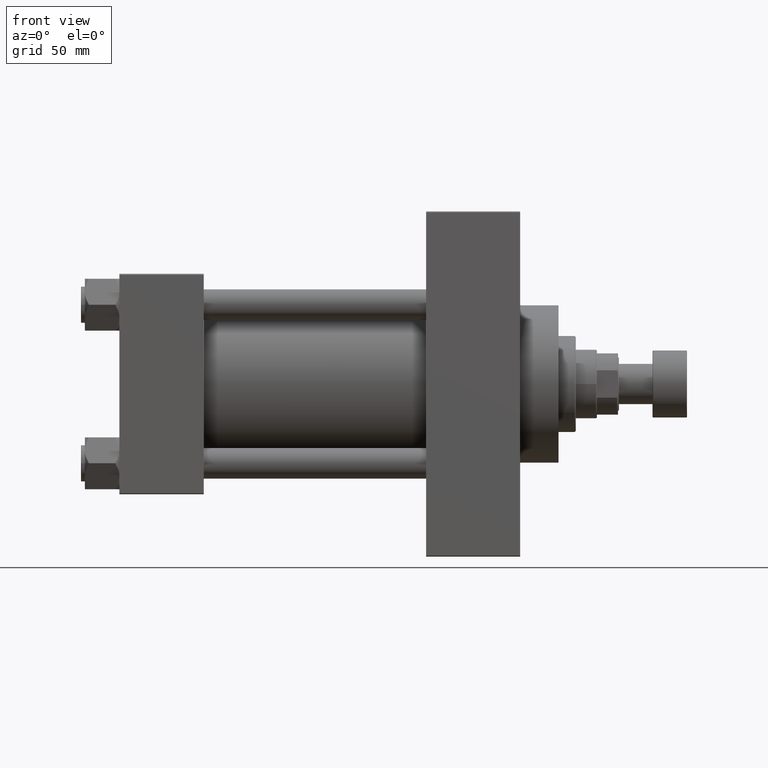
[diagram: clean part render]
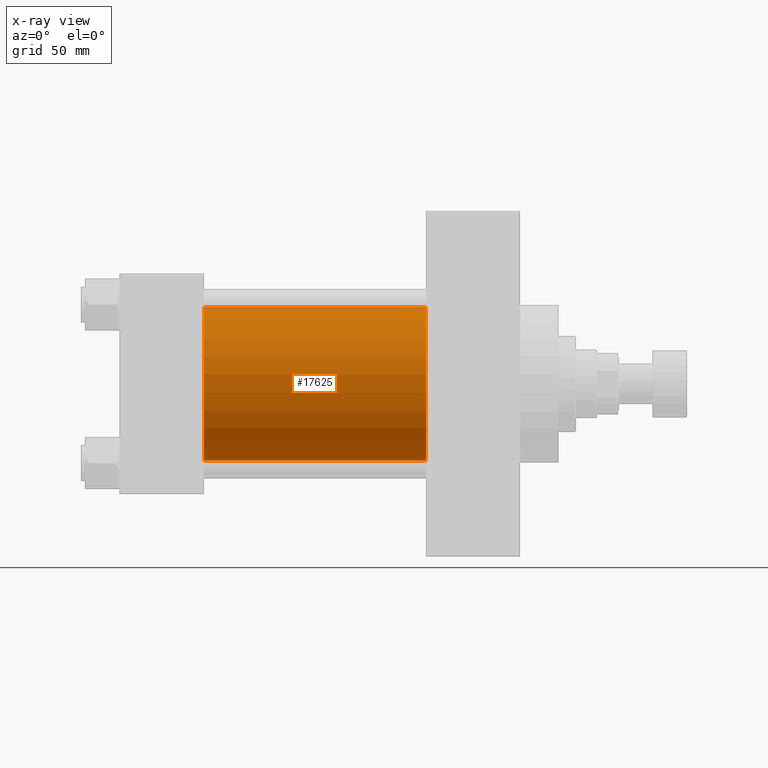
[diagram: x-ray — body ghosted, one internal face saturated and labeled with its STEP entity id]
A machine part, front view, then the same camera in x-ray: the body is ghosted and one INTERNAL B-rep face — a face not visible from any outside direction — is saturated and labeled: STEP entity #17625.
In plain terms, the highlighted cylindrical surface (partial cylindrical patch) has radius 40 mm, axis along (-1, -0, -0).
Its self-contained STEP definition (entity closure, byte-faithful):
#896 = DIRECTION ( 'NONE',  ( -1.000000000000000000, -0.000000000000000000, -0.000000000000000000 ) ) ;
#1021 = DIRECTION ( 'NONE',  ( 1.000000000000000000, 0.000000000000000000, 0.000000000000000000 ) ) ;
#2540 = LINE ( 'NONE', #43432, #21427 ) ;
#2633 = CIRCLE ( 'NONE', #29851, 40.00000000000000000 ) ;
#3594 = DIRECTION ( 'NONE',  ( -1.000000000000000000, -0.000000000000000000, -0.000000000000000000 ) ) ;
#3828 = CYLINDRICAL_SURFACE ( 'NONE', #14956, 40.00000000000000000 ) ;
#7682 = DIRECTION ( 'NONE',  ( 1.000000000000000000, 0.000000000000000000, 0.000000000000000000 ) ) ;
#7767 = AXIS2_PLACEMENT_3D ( 'NONE', #12229, #1021, #27050 ) ;
#10905 = FACE_OUTER_BOUND ( 'NONE', #37741, .T. ) ;
#11866 = VERTEX_POINT ( 'NONE', #40279 ) ;
#12229 = CARTESIAN_POINT ( 'NONE',  ( 44.00000000000000000, -2.602085213965210642E-15, 0.000000000000000000 ) ) ;
#14956 = AXIS2_PLACEMENT_3D ( 'NONE', #26204, #896, #30107 ) ;
#16758 = CARTESIAN_POINT ( 'NONE',  ( 160.0000000000000000, -2.602085213965210642E-15, 40.00000000000000000 ) ) ;
#17622 = EDGE_CURVE ( 'NONE', #21413, #26893, #25971, .T. ) ;
#17625 = ADVANCED_FACE ( 'NONE', ( #10905 ), #3828, .F. ) ;
#20975 = CIRCLE ( 'NONE', #7767, 40.00000000000000000 ) ;
#21413 = VERTEX_POINT ( 'NONE', #32935 ) ;
#21427 = VECTOR ( 'NONE', #24927, 1000.000000000000000 ) ;
#24927 = DIRECTION ( 'NONE',  ( -1.000000000000000000, -0.000000000000000000, -0.000000000000000000 ) ) ;
#25365 = EDGE_CURVE ( 'NONE', #36735, #21413, #2633, .T. ) ;
#25971 = LINE ( 'NONE', #40830, #47608 ) ;
#26204 = CARTESIAN_POINT ( 'NONE',  ( 160.0000000000000000, -2.602085213965210642E-15, 0.000000000000000000 ) ) ;
#26893 = VERTEX_POINT ( 'NONE', #28999 ) ;
#27050 = DIRECTION ( 'NONE',  ( 0.000000000000000000, 0.000000000000000000, -1.000000000000000000 ) ) ;
#28818 = EDGE_CURVE ( 'NONE', #36735, #11866, #2540, .T. ) ;
#28999 = CARTESIAN_POINT ( 'NONE',  ( 44.00000000000000000, 2.296501982624201201E-15, -40.00000000000000000 ) ) ;
#29851 = AXIS2_PLACEMENT_3D ( 'NONE', #43963, #7682, #33241 ) ;
#30107 = DIRECTION ( 'NONE',  ( 0.000000000000000000, 0.000000000000000000, 1.000000000000000000 ) ) ;
#30571 = ORIENTED_EDGE ( 'NONE', *, *, #25365, .T. ) ;
#32935 = CARTESIAN_POINT ( 'NONE',  ( 160.0000000000000000, 2.296501982624201201E-15, -40.00000000000000000 ) ) ;
#33241 = DIRECTION ( 'NONE',  ( 0.000000000000000000, 0.000000000000000000, -1.000000000000000000 ) ) ;
#33654 = ORIENTED_EDGE ( 'NONE', *, *, #44934, .F. ) ;
#35345 = ORIENTED_EDGE ( 'NONE', *, *, #28818, .F. ) ;
#36735 = VERTEX_POINT ( 'NONE', #16758 ) ;
#37741 = EDGE_LOOP ( 'NONE', ( #30571, #40370, #33654, #35345 ) ) ;
#40279 = CARTESIAN_POINT ( 'NONE',  ( 44.00000000000000000, -2.602085213965210642E-15, 40.00000000000000000 ) ) ;
#40370 = ORIENTED_EDGE ( 'NONE', *, *, #17622, .T. ) ;
#40830 = CARTESIAN_POINT ( 'NONE',  ( 160.0000000000000000, 2.296501982624201201E-15, -40.00000000000000000 ) ) ;
#43432 = CARTESIAN_POINT ( 'NONE',  ( 160.0000000000000000, -2.602085213965210642E-15, 40.00000000000000000 ) ) ;
#43963 = CARTESIAN_POINT ( 'NONE',  ( 160.0000000000000000, -2.602085213965210642E-15, 0.000000000000000000 ) ) ;
#44934 = EDGE_CURVE ( 'NONE', #11866, #26893, #20975, .T. ) ;
#47608 = VECTOR ( 'NONE', #3594, 1000.000000000000000 ) ;